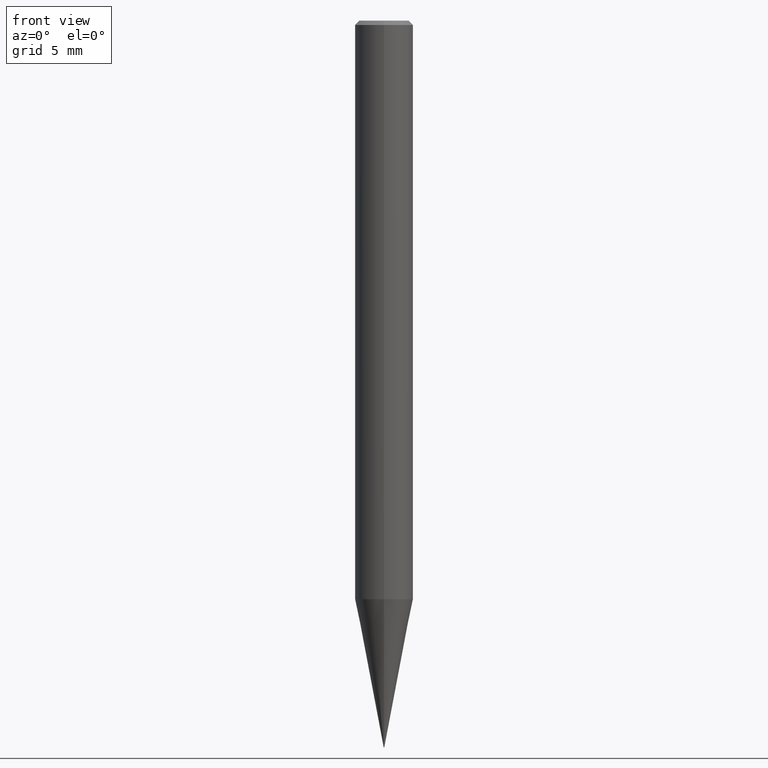
[diagram: clean part render]
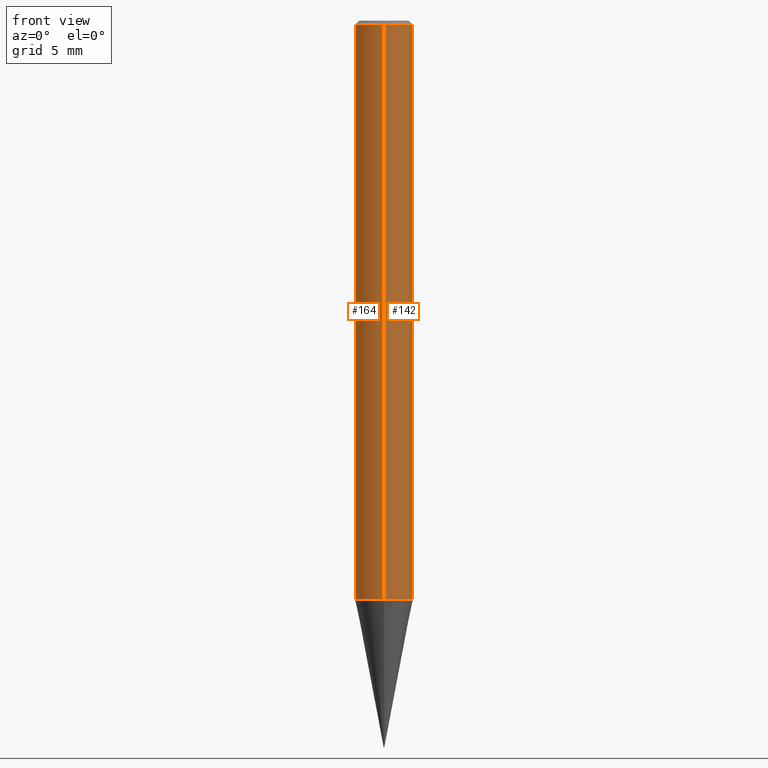
[diagram: same view with one multi-face feature highlighted, each face labeled with its STEP entity id]
A machine part, front view. The highlighted faces form ONE feature: a constant-radius fillet chain: 2 tangent blend faces with common blend radius 2 mm. The faces share edges in the B-rep.
Their STEP definitions:
[1] entity #142 (Cylinder):
#100=EDGE_CURVE('',#108,#176,#228,.T.);
#106=EDGE_CURVE('',#138,#114,#234,.T.);
#108=VERTEX_POINT('',#236);
#114=VERTEX_POINT('',#242);
#138=VERTEX_POINT('',#270);
#142=ADVANCED_FACE('',(#274),#275,.T.);
#162=EDGE_CURVE('',#108,#114,#299,.T.);
#174=EDGE_CURVE('',#176,#138,#313,.T.);
#176=VERTEX_POINT('',#315);
#228=LINE('',#368,#369);
#234=LINE('',#377,#378);
#236=CARTESIAN_POINT('',(0.0,2.0,-0.299999999999997));
#242=CARTESIAN_POINT('',(2.44921270764475E-016,-2.0,-0.299999999999997));
#270=CARTESIAN_POINT('',(2.44921270764475E-016,-2.0,-39.805));
#274=FACE_OUTER_BOUND('',#427,.T.);
#275=CYLINDRICAL_SURFACE('',#428,2.0);
#299=CIRCLE('',#455,2.0);
#313=CIRCLE('',#470,2.0);
#315=CARTESIAN_POINT('',(0.0,2.0,-39.805));
#368=CARTESIAN_POINT('',(-2.44921270764475E-016,2.0,-20.0525));
#369=VECTOR('',#518,1.0);
#377=CARTESIAN_POINT('',(2.44921270764475E-016,-2.0,-20.0525));
#378=VECTOR('',#522,1.0);
#427=EDGE_LOOP('',(#569,#570,#571,#572));
#428=AXIS2_PLACEMENT_3D('',#573,#574,#575);
#455=AXIS2_PLACEMENT_3D('',#611,#612,#613);
#470=AXIS2_PLACEMENT_3D('',#628,#629,#630);
#518=DIRECTION('',(0.0,0.0,-1.0));
#522=DIRECTION('',(-0.0,-0.0,1.0));
#569=ORIENTED_EDGE('',*,*,#100,.F.);
#570=ORIENTED_EDGE('',*,*,#162,.T.);
#571=ORIENTED_EDGE('',*,*,#106,.F.);
#572=ORIENTED_EDGE('',*,*,#174,.F.);
#573=CARTESIAN_POINT('',(0.0,0.0,-20.0525));
#574=DIRECTION('',(-0.0,-0.0,1.0));
#575=DIRECTION('',(0.0,1.0,0.0));
#611=CARTESIAN_POINT('',(0.0,0.0,-0.299999999999997));
#612=DIRECTION('',(0.0,0.0,-1.0));
#613=DIRECTION('',(0.0,1.0,0.0));
#628=CARTESIAN_POINT('',(0.0,0.0,-39.805));
#629=DIRECTION('',(0.0,0.0,-1.0));
#630=DIRECTION('',(0.0,1.0,0.0));
[2] entity #164 (Cylinder):
#88=EDGE_CURVE('',#114,#108,#213,.T.);
#100=EDGE_CURVE('',#108,#176,#228,.T.);
#106=EDGE_CURVE('',#138,#114,#234,.T.);
#108=VERTEX_POINT('',#236);
#114=VERTEX_POINT('',#242);
#118=EDGE_CURVE('',#138,#176,#246,.T.);
#138=VERTEX_POINT('',#270);
#164=ADVANCED_FACE('',(#301),#302,.T.);
#176=VERTEX_POINT('',#315);
#213=CIRCLE('',#347,2.0);
#228=LINE('',#368,#369);
#234=LINE('',#377,#378);
#236=CARTESIAN_POINT('',(0.0,2.0,-0.299999999999997));
#242=CARTESIAN_POINT('',(2.44921270764475E-016,-2.0,-0.299999999999997));
#246=CIRCLE('',#393,2.0);
#270=CARTESIAN_POINT('',(2.44921270764475E-016,-2.0,-39.805));
#301=FACE_OUTER_BOUND('',#457,.T.);
#302=CYLINDRICAL_SURFACE('',#458,2.0);
#315=CARTESIAN_POINT('',(0.0,2.0,-39.805));
#347=AXIS2_PLACEMENT_3D('',#496,#497,#498);
#368=CARTESIAN_POINT('',(-2.44921270764475E-016,2.0,-20.0525));
#369=VECTOR('',#518,1.0);
#377=CARTESIAN_POINT('',(2.44921270764475E-016,-2.0,-20.0525));
#378=VECTOR('',#522,1.0);
#393=AXIS2_PLACEMENT_3D('',#529,#530,#531);
#457=EDGE_LOOP('',(#615,#616,#617,#618));
#458=AXIS2_PLACEMENT_3D('',#619,#620,#621);
#496=CARTESIAN_POINT('',(0.0,0.0,-0.299999999999997));
#497=DIRECTION('',(0.0,0.0,-1.0));
#498=DIRECTION('',(0.0,1.0,0.0));
#518=DIRECTION('',(0.0,0.0,-1.0));
#522=DIRECTION('',(-0.0,-0.0,1.0));
#529=CARTESIAN_POINT('',(0.0,0.0,-39.805));
#530=DIRECTION('',(0.0,0.0,-1.0));
#531=DIRECTION('',(0.0,1.0,0.0));
#615=ORIENTED_EDGE('',*,*,#100,.T.);
#616=ORIENTED_EDGE('',*,*,#118,.F.);
#617=ORIENTED_EDGE('',*,*,#106,.T.);
#618=ORIENTED_EDGE('',*,*,#88,.T.);
#619=CARTESIAN_POINT('',(0.0,0.0,-20.0525));
#620=DIRECTION('',(-0.0,-0.0,1.0));
#621=DIRECTION('',(0.0,1.0,0.0));